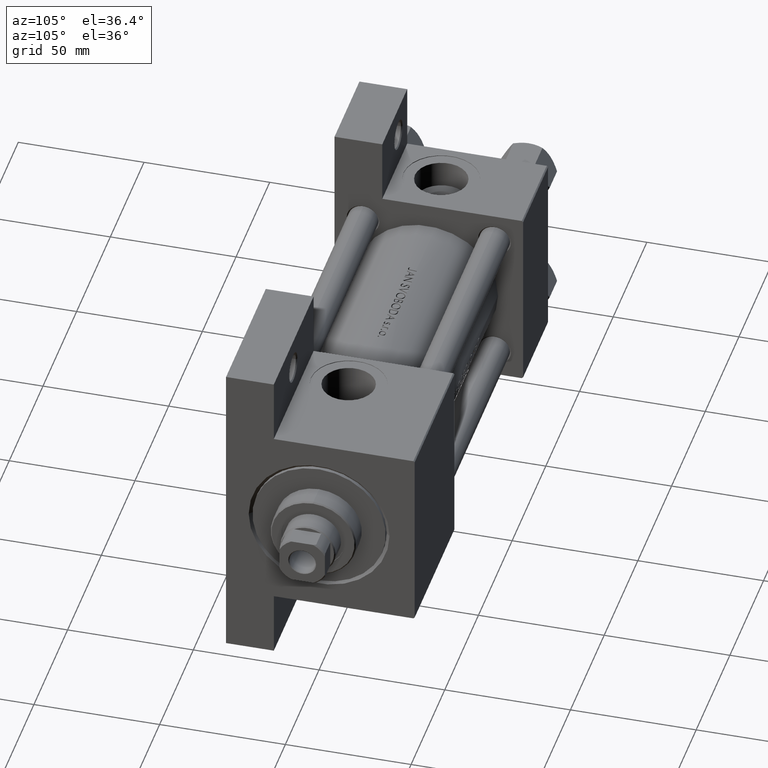
[diagram: clean part render]
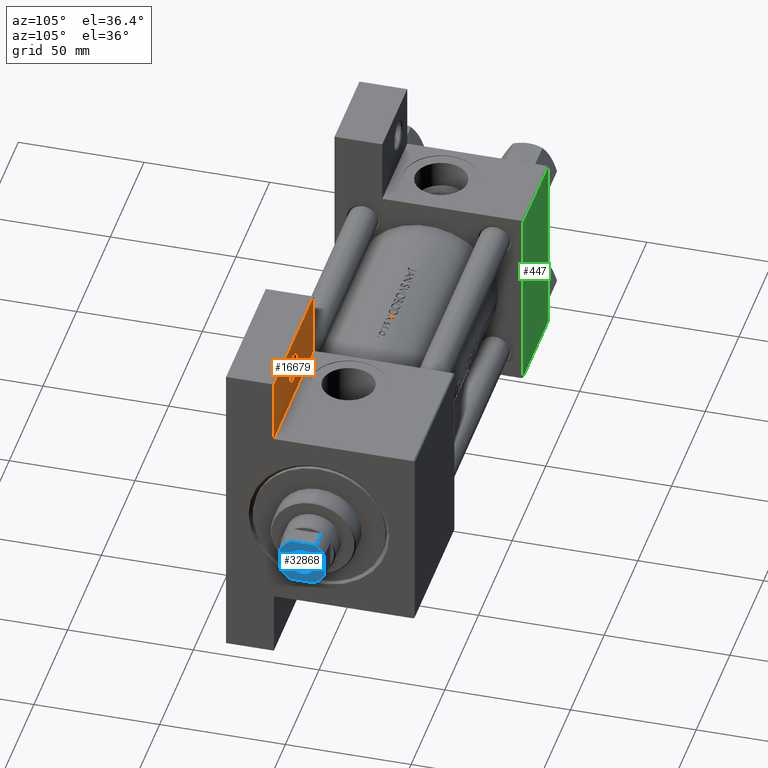
[diagram: same view with three faces highlighted in distinct colors, each labeled with its STEP entity id]
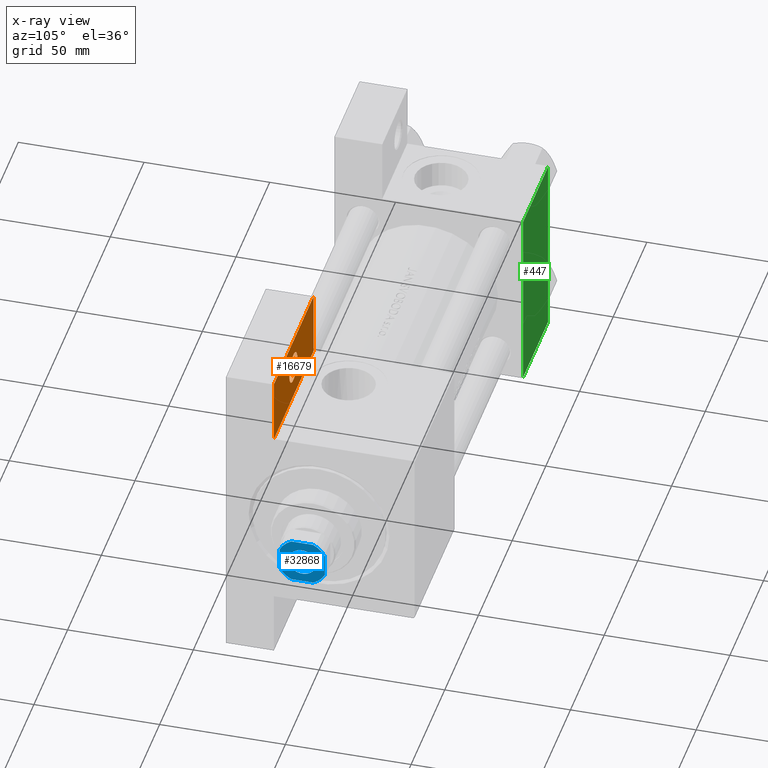
[diagram: x-ray of the same camera — body ghosted, the three highlighted faces saturated]
A machine part, auxiliary view with three faces highlighted in distinct colors.
The next image is the same camera in x-ray (body ghosted, the three faces saturated) — at least one of them is partly hidden behind the body in this view.
Their STEP definitions:

[orange] entity #16679 — the highlighted planar face has unit normal (0, -1, 0).
#850 = ORIENTED_EDGE ( 'NONE', *, *, #43891, .F. ) ;
#1287 = CARTESIAN_POINT ( 'NONE',  ( 168.9999999999999716, -51.00000000000000000, -18.50000000000000000 ) ) ;
#4119 = EDGE_CURVE ( 'NONE', #49052, #24117, #47099, .T. ) ;
#4894 = LINE ( 'NONE', #13109, #15496 ) ;
#7111 = CARTESIAN_POINT ( 'NONE',  ( 163.0004999999999598, -51.00000000000000000, -18.50000000000000000 ) ) ;
#8091 = AXIS2_PLACEMENT_3D ( 'NONE', #1287, #23699, #20678 ) ;
#8272 = DIRECTION ( 'NONE',  ( -1.000000000000000000, 0.000000000000000000, 0.000000000000000000 ) ) ;
#8571 = CARTESIAN_POINT ( 'NONE',  ( 197.9999999999999716, -37.50000000000000711, -18.50000000000000355 ) ) ;
#9354 = VECTOR ( 'NONE', #31816, 1000.000000000000000 ) ;
#9397 = CARTESIAN_POINT ( 'NONE',  ( 198.0000000000000000, -63.50000000000002842, -18.50000000000000000 ) ) ;
#10665 = PLANE ( 'NONE',  #21918 ) ;
#11280 = CARTESIAN_POINT ( 'NONE',  ( 168.9999999999999716, -51.00000000000000000, -18.50000000000000000 ) ) ;
#11638 = EDGE_CURVE ( 'NONE', #14078, #14082, #4894, .T. ) ;
#13109 = CARTESIAN_POINT ( 'NONE',  ( 138.9999999999999716, -63.50000000000000000, -18.50000000000000000 ) ) ;
#13504 = CARTESIAN_POINT ( 'NONE',  ( 138.9999999999999716, -37.50000000000000000, -18.50000000000000000 ) ) ;
#13671 = FACE_BOUND ( 'NONE', #48010, .T. ) ;
#14078 = VERTEX_POINT ( 'NONE', #34886 ) ;
#14082 = VERTEX_POINT ( 'NONE', #30397 ) ;
#14105 = VECTOR ( 'NONE', #37047, 1000.000000000000000 ) ;
#14539 = DIRECTION ( 'NONE',  ( 1.000000000000000000, -1.176083712526648456E-16, 0.000000000000000000 ) ) ;
#15261 = DIRECTION ( 'NONE',  ( 0.000000000000000000, 0.000000000000000000, -1.000000000000000000 ) ) ;
#15466 = VECTOR ( 'NONE', #14539, 1000.000000000000000 ) ;
#15496 = VECTOR ( 'NONE', #35034, 1000.000000000000000 ) ;
#16679 = ADVANCED_FACE ( 'NONE', ( #13671, #25377 ), #10665, .F. ) ;
#17551 = ORIENTED_EDGE ( 'NONE', *, *, #47782, .T. ) ;
#19083 = ORIENTED_EDGE ( 'NONE', *, *, #32154, .F. ) ;
#20678 = DIRECTION ( 'NONE',  ( -1.000000000000000000, 0.000000000000000000, 0.000000000000000000 ) ) ;
#21918 = AXIS2_PLACEMENT_3D ( 'NONE', #25875, #25134, #41057 ) ;
#22357 = AXIS2_PLACEMENT_3D ( 'NONE', #11280, #15261, #8272 ) ;
#23699 = DIRECTION ( 'NONE',  ( 0.000000000000000000, 0.000000000000000000, -1.000000000000000000 ) ) ;
#24117 = VERTEX_POINT ( 'NONE', #7111 ) ;
#24155 = VERTEX_POINT ( 'NONE', #8571 ) ;
#24405 = CARTESIAN_POINT ( 'NONE',  ( 174.9995000000000118, -51.00000000000000000, -18.50000000000000000 ) ) ;
#25040 = ORIENTED_EDGE ( 'NONE', *, *, #11638, .F. ) ;
#25134 = DIRECTION ( 'NONE',  ( 0.000000000000000000, 0.000000000000000000, -1.000000000000000000 ) ) ;
#25377 = FACE_OUTER_BOUND ( 'NONE', #49131, .T. ) ;
#25534 = CIRCLE ( 'NONE', #22357, 5.999500000000018929 ) ;
#25749 = ORIENTED_EDGE ( 'NONE', *, *, #4119, .T. ) ;
#25875 = CARTESIAN_POINT ( 'NONE',  ( 0.000000000000000000, 0.000000000000000000, -18.50000000000000000 ) ) ;
#27109 = LINE ( 'NONE', #9397, #9354 ) ;
#29067 = LINE ( 'NONE', #40292, #14105 ) ;
#30250 = VERTEX_POINT ( 'NONE', #13504 ) ;
#30397 = CARTESIAN_POINT ( 'NONE',  ( 138.9999999999999716, -63.50000000000000000, -18.50000000000000000 ) ) ;
#31816 = DIRECTION ( 'NONE',  ( -0.000000000000000000, -1.000000000000000000, -0.000000000000000000 ) ) ;
#32154 = EDGE_CURVE ( 'NONE', #30250, #24155, #48171, .T. ) ;
#34886 = CARTESIAN_POINT ( 'NONE',  ( 198.0000000000000000, -63.50000000000002842, -18.50000000000000000 ) ) ;
#35034 = DIRECTION ( 'NONE',  ( -1.000000000000000000, 4.704334850106593822E-16, -0.000000000000000000 ) ) ;
#36953 = CARTESIAN_POINT ( 'NONE',  ( 138.9999999999999716, -37.50000000000000000, -18.50000000000000000 ) ) ;
#37047 = DIRECTION ( 'NONE',  ( 0.000000000000000000, 1.000000000000000000, 0.000000000000000000 ) ) ;
#37182 = ORIENTED_EDGE ( 'NONE', *, *, #41825, .F. ) ;
#40292 = CARTESIAN_POINT ( 'NONE',  ( 138.9999999999999716, -63.50000000000000000, -18.50000000000000000 ) ) ;
#41057 = DIRECTION ( 'NONE',  ( -1.000000000000000000, 0.000000000000000000, -0.000000000000000000 ) ) ;
#41825 = EDGE_CURVE ( 'NONE', #14082, #30250, #29067, .T. ) ;
#43891 = EDGE_CURVE ( 'NONE', #24155, #14078, #27109, .T. ) ;
#47099 = CIRCLE ( 'NONE', #8091, 5.999500000000018929 ) ;
#47782 = EDGE_CURVE ( 'NONE', #24117, #49052, #25534, .T. ) ;
#48010 = EDGE_LOOP ( 'NONE', ( #25749, #17551 ) ) ;
#48171 = LINE ( 'NONE', #36953, #15466 ) ;
#49052 = VERTEX_POINT ( 'NONE', #24405 ) ;
#49131 = EDGE_LOOP ( 'NONE', ( #850, #19083, #37182, #25040 ) ) ;

[blue] entity #32868 — the highlighted planar face has unit normal (1, 0, 0).
#656 = FACE_OUTER_BOUND ( 'NONE', #46351, .T. ) ;
#1243 = DIRECTION ( 'NONE',  ( -1.927470528863119049E-16, 1.000000000000000000, -0.000000000000000000 ) ) ;
#2587 = EDGE_CURVE ( 'NONE', #43741, #3358, #40385, .T. ) ;
#2821 = CARTESIAN_POINT ( 'NONE',  ( -4.358898943540642001, 8.999999999999998224, 186.0000000000000284 ) ) ;
#3358 = VERTEX_POINT ( 'NONE', #2821 ) ;
#3561 = EDGE_LOOP ( 'NONE', ( #25104, #23907 ) ) ;
#4309 = CIRCLE ( 'NONE', #32123, 9.999999999999984013 ) ;
#4542 = CARTESIAN_POINT ( 'NONE',  ( 8.999999999999998224, 4.358898943540688187, 186.0000000000000284 ) ) ;
#5960 = CIRCLE ( 'NONE', #31377, 5.550000000000082423 ) ;
#6259 = CARTESIAN_POINT ( 'NONE',  ( -9.000000000000003553, 8.999999999999998224, 186.0000000000000284 ) ) ;
#6660 = VERTEX_POINT ( 'NONE', #39644 ) ;
#7241 = DIRECTION ( 'NONE',  ( 1.000000000000000000, 0.000000000000000000, 0.000000000000000000 ) ) ;
#7529 = CIRCLE ( 'NONE', #18656, 9.999999999999984013 ) ;
#8069 = DIRECTION ( 'NONE',  ( 1.000000000000000000, 0.000000000000000000, 0.000000000000000000 ) ) ;
#8105 = PLANE ( 'NONE',  #9901 ) ;
#8250 = EDGE_CURVE ( 'NONE', #9415, #12138, #39333, .T. ) ;
#8829 = DIRECTION ( 'NONE',  ( 1.000000000000000000, 0.000000000000000000, 0.000000000000000000 ) ) ;
#9095 = EDGE_CURVE ( 'NONE', #3358, #40222, #4309, .T. ) ;
#9415 = VERTEX_POINT ( 'NONE', #13193 ) ;
#9901 = AXIS2_PLACEMENT_3D ( 'NONE', #27775, #23297, #8829 ) ;
#10467 = CARTESIAN_POINT ( 'NONE',  ( 5.550000000000082423, 0.000000000000000000, 186.0000000000000284 ) ) ;
#11012 = DIRECTION ( 'NONE',  ( 0.000000000000000000, -0.000000000000000000, -1.000000000000000000 ) ) ;
#11084 = EDGE_CURVE ( 'NONE', #43754, #9415, #7529, .T. ) ;
#11182 = CARTESIAN_POINT ( 'NONE',  ( 4.358898943540635784, -9.000000000000001776, 186.0000000000000284 ) ) ;
#11201 = VECTOR ( 'NONE', #16486, 1000.000000000000000 ) ;
#11618 = AXIS2_PLACEMENT_3D ( 'NONE', #31379, #23418, #27403 ) ;
#11823 = DIRECTION ( 'NONE',  ( -0.000000000000000000, 0.000000000000000000, 1.000000000000000000 ) ) ;
#11864 = EDGE_CURVE ( 'NONE', #49256, #27854, #5960, .T. ) ;
#12138 = VERTEX_POINT ( 'NONE', #4542 ) ;
#12181 = ORIENTED_EDGE ( 'NONE', *, *, #47881, .T. ) ;
#13193 = CARTESIAN_POINT ( 'NONE',  ( 8.999999999999998224, -4.358898943540641113, 186.0000000000000284 ) ) ;
#13361 = CIRCLE ( 'NONE', #41201, 5.550000000000082423 ) ;
#13888 = VERTEX_POINT ( 'NONE', #40388 ) ;
#14270 = ORIENTED_EDGE ( 'NONE', *, *, #2587, .T. ) ;
#15068 = DIRECTION ( 'NONE',  ( 1.000000000000000000, 0.000000000000000000, 0.000000000000000000 ) ) ;
#16049 = CARTESIAN_POINT ( 'NONE',  ( -9.000000000000001776, -9.000000000000001776, 186.0000000000000284 ) ) ;
#16486 = DIRECTION ( 'NONE',  ( 9.637352644315595243E-17, -1.000000000000000000, 0.000000000000000000 ) ) ;
#17365 = EDGE_CURVE ( 'NONE', #12138, #43741, #17971, .T. ) ;
#17971 = CIRCLE ( 'NONE', #11618, 10.00000000000000355 ) ;
#18656 = AXIS2_PLACEMENT_3D ( 'NONE', #22782, #11823, #8069 ) ;
#19018 = CARTESIAN_POINT ( 'NONE',  ( -9.000000000000003553, 4.358898943540634008, 186.0000000000000284 ) ) ;
#19492 = EDGE_CURVE ( 'NONE', #6660, #43754, #28237, .T. ) ;
#20397 = CARTESIAN_POINT ( 'NONE',  ( 8.999999999999996447, 8.999999999999998224, 186.0000000000000284 ) ) ;
#20416 = ORIENTED_EDGE ( 'NONE', *, *, #11084, .T. ) ;
#20907 = DIRECTION ( 'NONE',  ( -0.000000000000000000, 0.000000000000000000, 1.000000000000000000 ) ) ;
#22461 = DIRECTION ( 'NONE',  ( 1.000000000000000000, 0.000000000000000000, 0.000000000000000000 ) ) ;
#22782 = CARTESIAN_POINT ( 'NONE',  ( 0.000000000000000000, 0.000000000000000000, 186.0000000000000284 ) ) ;
#23128 = ORIENTED_EDGE ( 'NONE', *, *, #8250, .T. ) ;
#23297 = DIRECTION ( 'NONE',  ( -0.000000000000000000, 0.000000000000000000, 1.000000000000000000 ) ) ;
#23418 = DIRECTION ( 'NONE',  ( -0.000000000000000000, 0.000000000000000000, 1.000000000000000000 ) ) ;
#23907 = ORIENTED_EDGE ( 'NONE', *, *, #11864, .T. ) ;
#24208 = CARTESIAN_POINT ( 'NONE',  ( -9.000000000000003553, 8.999999999999998224, 186.0000000000000284 ) ) ;
#24399 = ORIENTED_EDGE ( 'NONE', *, *, #9095, .T. ) ;
#24733 = VECTOR ( 'NONE', #45112, 1000.000000000000000 ) ;
#25104 = ORIENTED_EDGE ( 'NONE', *, *, #41335, .T. ) ;
#26184 = DIRECTION ( 'NONE',  ( -0.000000000000000000, 0.000000000000000000, 1.000000000000000000 ) ) ;
#26530 = CARTESIAN_POINT ( 'NONE',  ( 0.000000000000000000, 0.000000000000000000, 186.0000000000000284 ) ) ;
#26672 = CARTESIAN_POINT ( 'NONE',  ( 0.000000000000000000, 0.000000000000000000, 186.0000000000000284 ) ) ;
#26734 = AXIS2_PLACEMENT_3D ( 'NONE', #39847, #20907, #43088 ) ;
#27403 = DIRECTION ( 'NONE',  ( 1.000000000000000000, 0.000000000000000000, 0.000000000000000000 ) ) ;
#27775 = CARTESIAN_POINT ( 'NONE',  ( 0.000000000000000000, 0.000000000000000000, 186.0000000000000284 ) ) ;
#27854 = VERTEX_POINT ( 'NONE', #10467 ) ;
#28237 = LINE ( 'NONE', #16049, #45107 ) ;
#28425 = LINE ( 'NONE', #24208, #11201 ) ;
#31090 = ORIENTED_EDGE ( 'NONE', *, *, #17365, .T. ) ;
#31377 = AXIS2_PLACEMENT_3D ( 'NONE', #26530, #49199, #15068 ) ;
#31379 = CARTESIAN_POINT ( 'NONE',  ( 0.000000000000000000, 0.000000000000000000, 186.0000000000000284 ) ) ;
#32123 = AXIS2_PLACEMENT_3D ( 'NONE', #26672, #26184, #7241 ) ;
#32864 = VECTOR ( 'NONE', #1243, 1000.000000000000000 ) ;
#32868 = ADVANCED_FACE ( 'NONE', ( #42227, #656 ), #8105, .T. ) ;
#34986 = DIRECTION ( 'NONE',  ( 1.000000000000000000, 0.000000000000000000, 0.000000000000000000 ) ) ;
#35189 = EDGE_CURVE ( 'NONE', #13888, #6660, #37865, .T. ) ;
#37579 = CARTESIAN_POINT ( 'NONE',  ( -5.550000000000082423, 6.796789735267911360E-16, 186.0000000000000284 ) ) ;
#37586 = CARTESIAN_POINT ( 'NONE',  ( 4.358898943540686410, 8.999999999999998224, 186.0000000000000284 ) ) ;
#37865 = CIRCLE ( 'NONE', #26734, 9.999999999999973355 ) ;
#37963 = ORIENTED_EDGE ( 'NONE', *, *, #35189, .T. ) ;
#39333 = LINE ( 'NONE', #20397, #32864 ) ;
#39644 = CARTESIAN_POINT ( 'NONE',  ( -4.358898943540612692, -9.000000000000001776, 186.0000000000000284 ) ) ;
#39847 = CARTESIAN_POINT ( 'NONE',  ( 0.000000000000000000, 0.000000000000000000, 186.0000000000000284 ) ) ;
#40222 = VERTEX_POINT ( 'NONE', #19018 ) ;
#40385 = LINE ( 'NONE', #6259, #24733 ) ;
#40388 = CARTESIAN_POINT ( 'NONE',  ( -9.000000000000003553, -4.358898943540610915, 186.0000000000000284 ) ) ;
#41201 = AXIS2_PLACEMENT_3D ( 'NONE', #45133, #11012, #22461 ) ;
#41335 = EDGE_CURVE ( 'NONE', #27854, #49256, #13361, .T. ) ;
#42227 = FACE_BOUND ( 'NONE', #3561, .T. ) ;
#43088 = DIRECTION ( 'NONE',  ( 1.000000000000000000, 0.000000000000000000, 0.000000000000000000 ) ) ;
#43741 = VERTEX_POINT ( 'NONE', #37586 ) ;
#43754 = VERTEX_POINT ( 'NONE', #11182 ) ;
#45107 = VECTOR ( 'NONE', #34986, 1000.000000000000000 ) ;
#45112 = DIRECTION ( 'NONE',  ( -1.000000000000000000, -0.000000000000000000, -0.000000000000000000 ) ) ;
#45133 = CARTESIAN_POINT ( 'NONE',  ( 0.000000000000000000, 0.000000000000000000, 186.0000000000000284 ) ) ;
#46351 = EDGE_LOOP ( 'NONE', ( #23128, #31090, #14270, #24399, #12181, #37963, #46923, #20416 ) ) ;
#46923 = ORIENTED_EDGE ( 'NONE', *, *, #19492, .T. ) ;
#47881 = EDGE_CURVE ( 'NONE', #40222, #13888, #28425, .T. ) ;
#49199 = DIRECTION ( 'NONE',  ( 0.000000000000000000, -0.000000000000000000, -1.000000000000000000 ) ) ;
#49256 = VERTEX_POINT ( 'NONE', #37579 ) ;

[green] entity #447 — the highlighted planar face has unit normal (0, -1, -0).
#15 = PLANE ( 'NONE',  #18299 ) ;
#447 = ADVANCED_FACE ( 'NONE', ( #37369 ), #15, .F. ) ;
#1893 = VERTEX_POINT ( 'NONE', #27814 ) ;
#2236 = EDGE_CURVE ( 'NONE', #1893, #4649, #13549, .T. ) ;
#4649 = VERTEX_POINT ( 'NONE', #19587 ) ;
#7832 = ORIENTED_EDGE ( 'NONE', *, *, #26717, .F. ) ;
#8056 = DIRECTION ( 'NONE',  ( 1.000000000000000000, 0.000000000000000000, 0.000000000000000000 ) ) ;
#8544 = LINE ( 'NONE', #23748, #44456 ) ;
#12602 = ORIENTED_EDGE ( 'NONE', *, *, #46290, .T. ) ;
#13549 = LINE ( 'NONE', #24751, #21555 ) ;
#15191 = CARTESIAN_POINT ( 'NONE',  ( 37.00000000000000000, 37.49999999999999289, 37.50000000000000000 ) ) ;
#18299 = AXIS2_PLACEMENT_3D ( 'NONE', #15191, #45088, #30373 ) ;
#19343 = CARTESIAN_POINT ( 'NONE',  ( 37.00000000000000000, -37.00000000000000711, 37.49999999999999289 ) ) ;
#19398 = CARTESIAN_POINT ( 'NONE',  ( 0.000000000000000000, 36.99999999999999289, 37.50000000000000000 ) ) ;
#19587 = CARTESIAN_POINT ( 'NONE',  ( 0.000000000000000000, -37.00000000000000711, 37.49999999999999289 ) ) ;
#21105 = VERTEX_POINT ( 'NONE', #24525 ) ;
#21555 = VECTOR ( 'NONE', #32223, 1000.000000000000000 ) ;
#22656 = VERTEX_POINT ( 'NONE', #19343 ) ;
#23134 = DIRECTION ( 'NONE',  ( -1.000000000000000000, 0.000000000000000000, 0.000000000000000000 ) ) ;
#23748 = CARTESIAN_POINT ( 'NONE',  ( 37.00000000000000000, -37.00000000000000711, 37.49999999999999289 ) ) ;
#24525 = CARTESIAN_POINT ( 'NONE',  ( 37.00000000000000000, 36.99999999999999289, 37.50000000000000000 ) ) ;
#24751 = CARTESIAN_POINT ( 'NONE',  ( 0.000000000000000000, 37.49999999999999289, 37.50000000000000000 ) ) ;
#25744 = VECTOR ( 'NONE', #37994, 1000.000000000000000 ) ;
#26287 = LINE ( 'NONE', #41472, #25744 ) ;
#26717 = EDGE_CURVE ( 'NONE', #21105, #22656, #26287, .T. ) ;
#27814 = CARTESIAN_POINT ( 'NONE',  ( 0.000000000000000000, 36.99999999999999289, 37.50000000000000000 ) ) ;
#29127 = VECTOR ( 'NONE', #23134, 1000.000000000000000 ) ;
#29170 = ORIENTED_EDGE ( 'NONE', *, *, #36264, .T. ) ;
#30373 = DIRECTION ( 'NONE',  ( 0.000000000000000000, 1.000000000000000000, 9.251858538542971581E-17 ) ) ;
#30860 = LINE ( 'NONE', #19398, #29127 ) ;
#32223 = DIRECTION ( 'NONE',  ( 0.000000000000000000, -1.000000000000000000, -9.251858538542971581E-17 ) ) ;
#36264 = EDGE_CURVE ( 'NONE', #21105, #1893, #30860, .T. ) ;
#37369 = FACE_OUTER_BOUND ( 'NONE', #41152, .T. ) ;
#37994 = DIRECTION ( 'NONE',  ( 0.000000000000000000, -1.000000000000000000, -9.251858538542971581E-17 ) ) ;
#41152 = EDGE_LOOP ( 'NONE', ( #47584, #12602, #7832, #29170 ) ) ;
#41472 = CARTESIAN_POINT ( 'NONE',  ( 37.00000000000000000, 37.49999999999999289, 37.50000000000000000 ) ) ;
#44456 = VECTOR ( 'NONE', #8056, 1000.000000000000000 ) ;
#45088 = DIRECTION ( 'NONE',  ( 0.000000000000000000, 9.251858538542971581E-17, -1.000000000000000000 ) ) ;
#46290 = EDGE_CURVE ( 'NONE', #4649, #22656, #8544, .T. ) ;
#47584 = ORIENTED_EDGE ( 'NONE', *, *, #2236, .T. ) ;